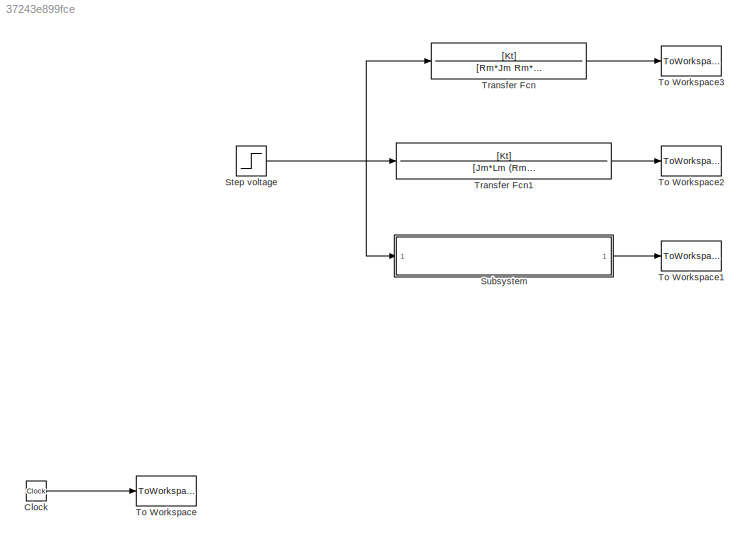
MODEL slx_37243e899fce
KIND model
CONFIG AbsTol = auto
CONFIG EnableMultiTasking = off
CONFIG FixedStep = sim_step_size
CONFIG MaxStep = auto
CONFIG MinStep = auto
CONFIG RelTol = 1e-3
CONFIG SampleTimeConstraint = Unconstrained
CONFIG Solver = ode5
CONFIG SolverName = ode5
CONFIG StartTime = 0.0
CONFIG StopTime = Tsim_final
BLOCK [Clock] Clock
BLOCK [Step] Step voltage
  After = Vsupply
  SampleTime = 0
  Time = 0
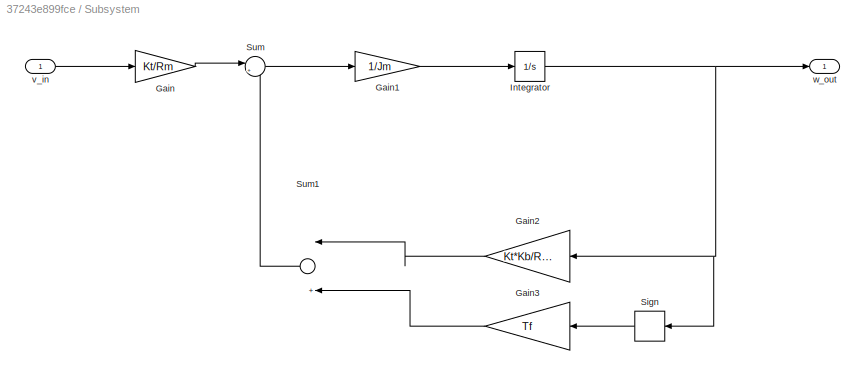
BLOCK [SubSystem] Subsystem
  Ports = [1, 1]
  RequestExecContextInheritance = off
  Variant = off
BLOCK [Gain] Subsystem/Gain
  Gain = Kt/Rm
  OutDataTypeStr = Inherit: Inherit via internal rule
  ParamDataTypeStr = Inherit: Inherit via internal rule
  SaturateOnIntegerOverflow = off
BLOCK [Gain] Subsystem/Gain1
  Gain = 1/Jm
  OutDataTypeStr = Inherit: Inherit via internal rule
  ParamDataTypeStr = Inherit: Inherit via internal rule
  SaturateOnIntegerOverflow = off
BLOCK [Gain] Subsystem/Gain2
  Gain = Kt*Kb/Rm+Bm
  OutDataTypeStr = Inherit: Inherit via internal rule
  ParamDataTypeStr = Inherit: Inherit via internal rule
  SaturateOnIntegerOverflow = off
BLOCK [Gain] Subsystem/Gain3
  Gain = Tf
  OutDataTypeStr = Inherit: Inherit via internal rule
  ParamDataTypeStr = Inherit: Inherit via internal rule
  SaturateOnIntegerOverflow = off
BLOCK [Integrator] Subsystem/Integrator
  Ports = [1, 1]
BLOCK [Signum] Subsystem/Sign
BLOCK [Sum] Subsystem/Sum
  IconShape = round
  InputSameDT = off
  Inputs = |+-
  OutDataTypeStr = Inherit: Inherit via internal rule
  Ports = [2, 1]
  SaturateOnIntegerOverflow = off
BLOCK [Sum] Subsystem/Sum1
  InputSameDT = off
  Inputs = |++
  OutDataTypeStr = Inherit: Inherit via internal rule
  Ports = [2, 1]
  SaturateOnIntegerOverflow = off
BLOCK [Inport] Subsystem/v_in
  IconDisplay = Port number
BLOCK [Outport] Subsystem/w_out
  IconDisplay = Port number
BLOCK [ToWorkspace] To Workspace
  FixptAsFi = on
  MaxDataPoints = inf
  Ports = [1]
  SampleTime = -1
  Save2DSignal = 3-D array (concatenate along third dimension)
  VariableName = T
BLOCK [ToWorkspace] To Workspace1
  FixptAsFi = on
  MaxDataPoints = inf
  Ports = [1]
  SampleTime = -1
  Save2DSignal = 3-D array (concatenate along third dimension)
  VariableName = W_Tf
BLOCK [ToWorkspace] To Workspace2
  FixptAsFi = on
  MaxDataPoints = inf
  Ports = [1]
  SampleTime = -1
  Save2DSignal = 3-D array (concatenate along third dimension)
  VariableName = W_Second
BLOCK [ToWorkspace] To Workspace3
  FixptAsFi = on
  MaxDataPoints = inf
  Ports = [1]
  SampleTime = -1
  Save2DSignal = 3-D array (concatenate along third dimension)
  VariableName = W_First
BLOCK [TransferFcn] Transfer Fcn
  Denominator = [Rm*Jm    Rm*Bm+Kt*Kb]
  Numerator = [Kt]
BLOCK [TransferFcn] Transfer Fcn1
  Denominator = [Jm*Lm    (Rm*Jm+Lm*Bm)   (Kt*Kb+Rm*Bm)]
  Numerator = [Kt]
LINE Clock:1 -> To Workspace:1
NET Step voltage:1 -> Subsystem:1, Transfer Fcn1:1, Transfer Fcn:1
LINE Subsystem/Gain1:1 -> Subsystem/Integrator:1
LINE Subsystem/Gain2:1 -> Subsystem/Sum1:1
LINE Subsystem/Gain3:1 -> Subsystem/Sum1:2
LINE Subsystem/Gain:1 -> Subsystem/Sum:1
NET Subsystem/Integrator:1 -> Subsystem/Gain2:1, Subsystem/Sign:1, Subsystem/w_out:1
LINE Subsystem/Sign:1 -> Subsystem/Gain3:1
LINE Subsystem/Sum1:1 -> Subsystem/Sum:2
LINE Subsystem/Sum:1 -> Subsystem/Gain1:1
LINE Subsystem/v_in:1 -> Subsystem/Gain:1
LINE Subsystem:1 -> To Workspace1:1
LINE Transfer Fcn1:1 -> To Workspace2:1
LINE Transfer Fcn:1 -> To Workspace3:1
note: NET lines group one-source signal fan-out (src -> all destinations, sorted); 1:1 wires keep LINE
